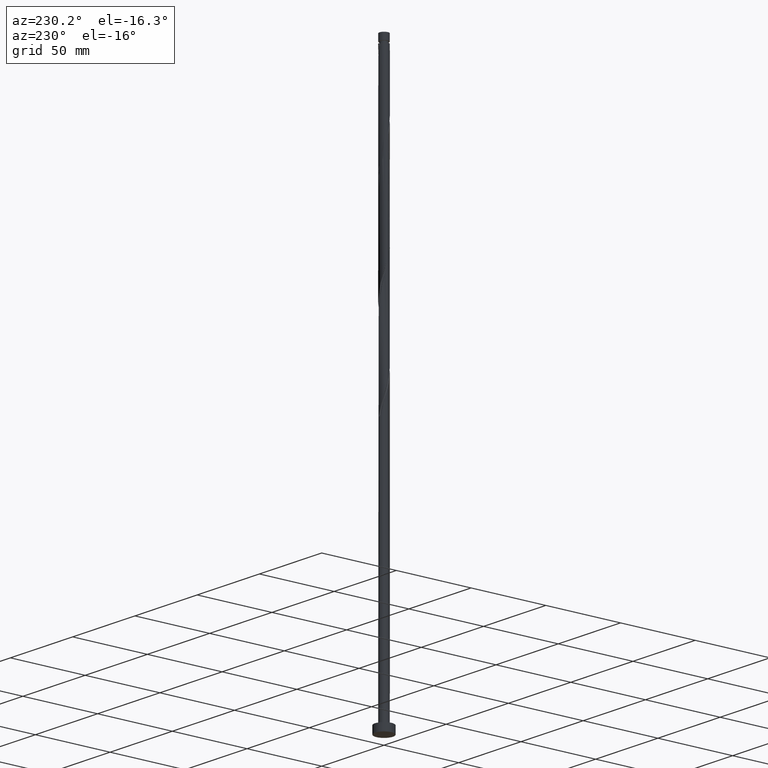
[diagram: clean part render]
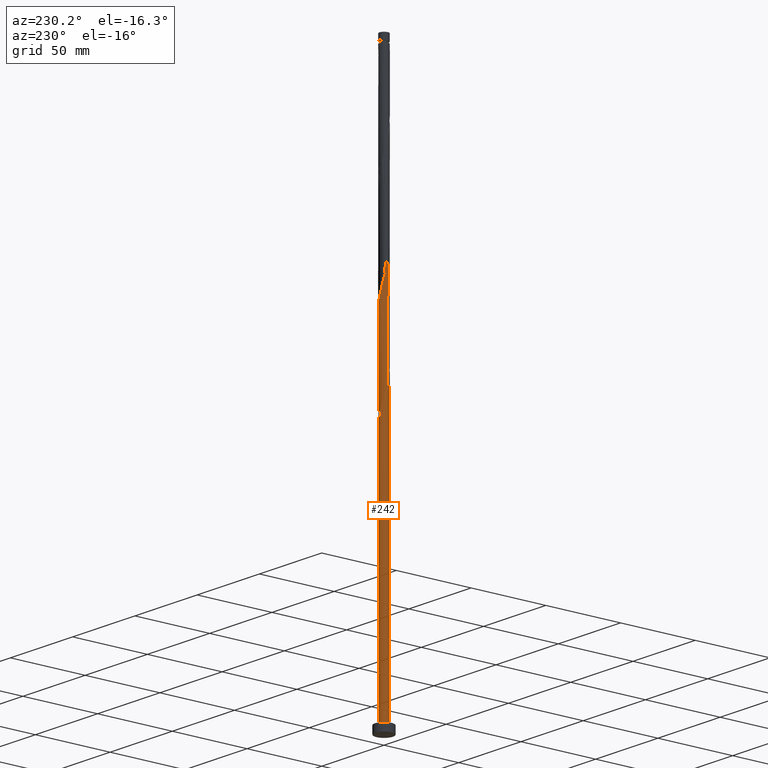
[diagram: same view with one face highlighted and labeled with its STEP entity id]
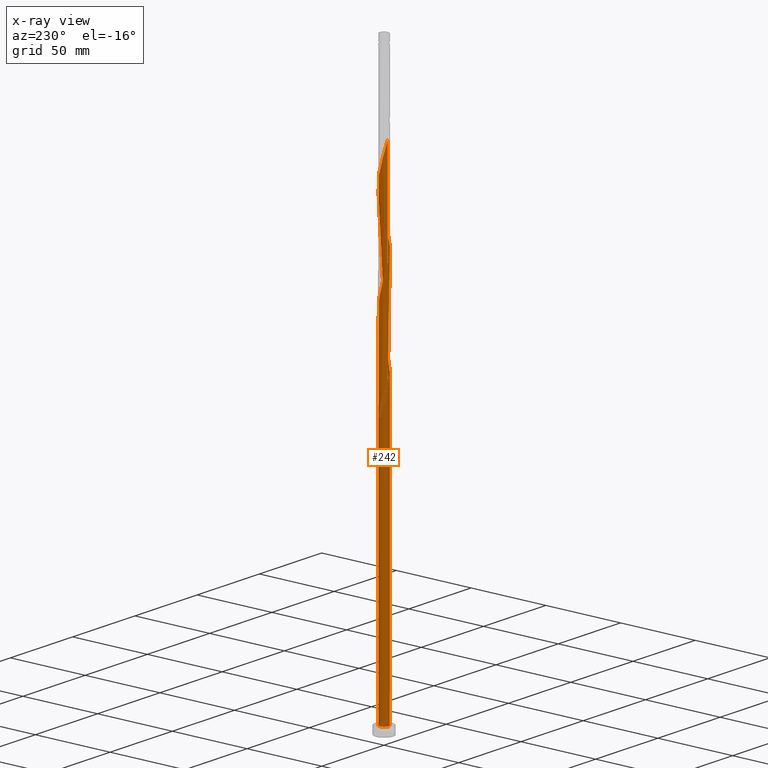
[diagram: x-ray of the same camera — body ghosted, the highlighted face saturated]
A machine part, auxiliary view. The second image highlights one B-rep face of the part: STEP entity #242.
The next image is the same camera in x-ray: the body ghosted, the highlighted face saturated — about 0% of this face is hidden behind the body in this view.
In plain terms, the highlighted cylindrical surface (bore or boss wall) has radius 3 mm, axis along (-0, -0, -1).
Its self-contained STEP definition (entity closure, byte-faithful):
#4 = CARTESIAN_POINT ( 'NONE',  ( 0.9059989139450633777, -2.877253563794377023, 271.1348695446484953 ) ) ;
#16 = CARTESIAN_POINT ( 'NONE',  ( 1.785379858637182515, 2.410895841875527079, 227.8015362113152378 ) ) ;
#27 = CARTESIAN_POINT ( 'NONE',  ( -2.038775222402707588, -2.223244857174723421, 260.0237584335374095 ) ) ;
#38 = CARTESIAN_POINT ( 'NONE',  ( 2.038775222402708476, 2.223244857174723421, 293.3570917668706670 ) ) ;
#50 = AXIS2_PLACEMENT_3D ( 'NONE', #176, #933, #205 ) ;
#54 = CARTESIAN_POINT ( 'NONE',  ( -1.997955648279250651, 2.259998966802001075, 308.9126473224263236 ) ) ;
#76 = CARTESIAN_POINT ( 'NONE',  ( -2.944774136347771520, 0.6540087066196512700, 315.5793139890930092 ) ) ;
#85 = VECTOR ( 'NONE', #1208, 1000.000000000000000 ) ;
#91 = CARTESIAN_POINT ( 'NONE',  ( 1.195207115623887262, -2.751632233922633120, 205.5793139890930092 ) ) ;
#98 = CARTESIAN_POINT ( 'NONE',  ( -2.844610918258241306, 0.9529893618115773402, 181.1348695446485237 ) ) ;
#100 = EDGE_CURVE ( 'NONE', #708, #1715, #1727, .T. ) ;
#106 = CARTESIAN_POINT ( 'NONE',  ( -0.3426132633519642923, -2.997004880578674424, 200.0237584335374095 ) ) ;
#111 = VERTEX_POINT ( 'NONE', #527 ) ;
#115 = CARTESIAN_POINT ( 'NONE',  ( -2.980586974261068889, 0.3407363920471048191, 183.3570917668707807 ) ) ;
#116 = CIRCLE ( 'NONE', #424, 3.000000000000000444 ) ;
#117 = CARTESIAN_POINT ( 'NONE',  ( -1.531984494871650559, 2.598546826576326296, 177.8015362113152094 ) ) ;
#127 = VERTEX_POINT ( 'NONE', #343 ) ;
#133 = CARTESIAN_POINT ( 'NONE',  ( 1.484415317302710369, -2.626010904050888772, 273.3570917668707807 ) ) ;
#142 = CARTESIAN_POINT ( 'NONE',  ( 2.944774136347771076, -0.6540087066196530463, 282.2459806557595812 ) ) ;
#149 = CARTESIAN_POINT ( 'NONE',  ( -1.785379858637182515, -2.410895841875527079, 261.1348695446486090 ) ) ;
#155 = CARTESIAN_POINT ( 'NONE',  ( -2.424175730171096887, 1.795214230025626412, 244.4682028779818381 ) ) ;
#156 = CARTESIAN_POINT ( 'NONE',  ( 0.5969924622639752876, 2.939999999999999059, 170.0237584335374095 ) ) ;
#163 = CARTESIAN_POINT ( 'NONE',  ( -2.861491667719902932, -0.9010357570982425734, 254.4682028779819518 ) ) ;
#176 = CARTESIAN_POINT ( 'NONE',  ( 0.000000000000000000, 0.000000000000000000, 170.0237584335374095 ) ) ;
#177 = CARTESIAN_POINT ( 'NONE',  ( 0.2879860105828859207, 3.002746436205627756, 171.1348695446484953 ) ) ;
#197 = DIRECTION ( 'NONE',  ( -0.000000000000000000, -0.000000000000000000, -1.000000000000000000 ) ) ;
#199 = CIRCLE ( 'NONE', #50, 3.000000000000000444 ) ;
#205 = DIRECTION ( 'NONE',  ( -1.000000000000000000, 0.000000000000000000, 0.000000000000000000 ) ) ;
#242 = ADVANCED_FACE ( 'NONE', ( #1371 ), #1359, .T. ) ;
#245 = CARTESIAN_POINT ( 'NONE',  ( -2.611625341554443480, -1.476283534877589121, 190.0237584335374379 ) ) ;
#260 = CARTESIAN_POINT ( 'NONE',  ( 3.016399812174364481, -0.02746407747455986703, 217.8015362113151809 ) ) ;
#261 = ORIENTED_EDGE ( 'NONE', *, *, #1285, .T. ) ;
#268 = CARTESIAN_POINT ( 'NONE',  ( -2.944774136347771520, 0.6540087066196512700, 182.2459806557596949 ) ) ;
#279 = CARTESIAN_POINT ( 'NONE',  ( 0.2879860105828850325, -3.002746436205632641, 202.2459806557596664 ) ) ;
#289 = CARTESIAN_POINT ( 'NONE',  ( -2.211065689225174324, 2.027606598413813632, 243.3570917668708091 ) ) ;
#297 = CARTESIAN_POINT ( 'NONE',  ( 0.3426132633519647919, 2.997004880578674424, 233.3570917668707523 ) ) ;
#309 = CARTESIAN_POINT ( 'NONE',  ( 0.9582386936374935882, 2.860279830445437543, 231.1348695446485237 ) ) ;
#318 = CARTESIAN_POINT ( 'NONE',  ( -2.584311715169902879, 1.523592123514564634, 245.5793139890930092 ) ) ;
#327 = CARTESIAN_POINT ( 'NONE',  ( -0.02731362638454028560, -2.999875658392153532, 267.8015362113151809 ) ) ;
#343 = CARTESIAN_POINT ( 'NONE',  ( -3.000000000000006217, -3.393290300490922645E-15, 184.5649818566826070 ) ) ;
#351 = DIRECTION ( 'NONE',  ( -1.000000000000000000, 0.000000000000000000, 0.000000000000000000 ) ) ;
#356 = CARTESIAN_POINT ( 'NONE',  ( -2.211065689225174324, 2.027606598413813632, 310.0237584335375800 ) ) ;
#367 = CARTESIAN_POINT ( 'NONE',  ( 1.785379858637182515, 2.410895841875527079, 294.4682028779818665 ) ) ;
#388 = CARTESIAN_POINT ( 'NONE',  ( -2.424175730171096887, 1.795214230025626412, 177.8015362113152094 ) ) ;
#399 = CARTESIAN_POINT ( 'NONE',  ( -2.247618455994266462, -1.987010638188427381, 192.2459806557597233 ) ) ;
#403 = CARTESIAN_POINT ( 'NONE',  ( 0.000000000000000000, 0.000000000000000000, 5.000000000000000000 ) ) ;
#407 = CARTESIAN_POINT ( 'NONE',  ( 2.980586974261068889, -0.3407363920471051522, 216.6904251002040951 ) ) ;
#408 = CARTESIAN_POINT ( 'NONE',  ( -1.785379858637177630, 2.410895841875524859, 178.9126473224263236 ) ) ;
#414 = CARTESIAN_POINT ( 'NONE',  ( -1.785379858637182515, -2.410895841875527079, 194.4682028779819234 ) ) ;
#424 = AXIS2_PLACEMENT_3D ( 'NONE', #403, #1126, #1091 ) ;
#435 = CARTESIAN_POINT ( 'NONE',  ( 1.531984494871656111, 2.598546826576328517, 228.9126473224262952 ) ) ;
#444 = CARTESIAN_POINT ( 'NONE',  ( 2.247618455994267350, 1.987010638188426048, 225.5793139890930661 ) ) ;
#452 = CARTESIAN_POINT ( 'NONE',  ( 2.956194341916741575, 0.6002808636434363576, 286.6904251002040382 ) ) ;
#462 = CARTESIAN_POINT ( 'NONE',  ( 1.741185482790979844, -2.443004935426445812, 274.4682028779819234 ) ) ;
#471 = CARTESIAN_POINT ( 'NONE',  ( -1.531984494871654334, -2.598546826576328961, 262.2459806557595812 ) ) ;
#505 = CARTESIAN_POINT ( 'NONE',  ( -2.844610918258241306, 0.9529893618115773402, 314.4682028779819234 ) ) ;
#515 = LINE ( 'NONE', #1657, #638 ) ;
#523 = CARTESIAN_POINT ( 'NONE',  ( 0.9582386936374935882, 2.860279830445437543, 297.8015362113152378 ) ) ;
#527 = CARTESIAN_POINT ( 'NONE',  ( -0.5969924622639743994, 2.940000000000004388, 170.0237584335374095 ) ) ;
#543 = CARTESIAN_POINT ( 'NONE',  ( 0.5969924622639748435, -2.940000000000004388, 203.3570917668708091 ) ) ;
#545 = VERTEX_POINT ( 'NONE', #719 ) ;
#549 = CARTESIAN_POINT ( 'NONE',  ( 2.744447700168709758, -1.251970017003503299, 213.3570917668706954 ) ) ;
#550 = CARTESIAN_POINT ( 'NONE',  ( -2.038775222402704035, 2.223244857174722089, 180.0237584335374379 ) ) ;
#557 = ORIENTED_EDGE ( 'NONE', *, *, #1345, .F. ) ;
#558 = EDGE_CURVE ( 'NONE', #545, #1872, #1809, .T. ) ;
#560 = CARTESIAN_POINT ( 'NONE',  ( -2.611625341554438595, 1.476283534877587345, 183.3570917668707523 ) ) ;
#567 = CARTESIAN_POINT ( 'NONE',  ( -3.000000000000003997, -0.1435319978602615509, 185.0735303822467301 ) ) ;
#577 = CARTESIAN_POINT ( 'NONE',  ( 0.2879860105828850325, -3.002746436205632641, 268.9126473224262668 ) ) ;
#589 = CARTESIAN_POINT ( 'NONE',  ( -2.986297077045554360, -0.2864083930844386616, 252.2459806557597233 ) ) ;
#597 = CARTESIAN_POINT ( 'NONE',  ( 3.016399812174364481, -0.02746407747455986703, 284.4682028779819234 ) ) ;
#607 = CARTESIAN_POINT ( 'NONE',  ( -2.744447700168709758, 1.251970017003503299, 246.6904251002040667 ) ) ;
#614 = CARTESIAN_POINT ( 'NONE',  ( -1.997955648279250651, 2.259998966802001075, 242.2459806557596380 ) ) ;
#638 = VECTOR ( 'NONE', #1792, 1000.000000000000000 ) ;
#646 = CARTESIAN_POINT ( 'NONE',  ( -1.741185482790980954, 2.443004935426445368, 307.8015362113151809 ) ) ;
#680 = CARTESIAN_POINT ( 'NONE',  ( -2.861491667719902932, -0.9010357570982425734, 187.8015362113152378 ) ) ;
#687 = CARTESIAN_POINT ( 'NONE',  ( -1.245111594254573628, -2.729413328510884806, 196.6904251002040951 ) ) ;
#688 = AXIS2_PLACEMENT_3D ( 'NONE', #1661, #197, #351 ) ;
#695 = CARTESIAN_POINT ( 'NONE',  ( -1.997955648279250651, 2.259998966802001075, 175.5793139890929808 ) ) ;
#696 = CARTESIAN_POINT ( 'NONE',  ( -2.766788993523056295, 1.201790650553046902, 184.4682028779818097 ) ) ;
#704 = CARTESIAN_POINT ( 'NONE',  ( 1.484415317302710369, -2.626010904050888772, 206.6904251002040667 ) ) ;
#705 = CARTESIAN_POINT ( 'NONE',  ( -1.245111594254570742, 2.729413328510880365, 176.6904251002040951 ) ) ;
#708 = VERTEX_POINT ( 'NONE', #1507 ) ;
#717 = CARTESIAN_POINT ( 'NONE',  ( 1.997955648279249763, -2.259998966802001963, 275.5793139890928956 ) ) ;
#719 = CARTESIAN_POINT ( 'NONE',  ( -3.000000000000000000, -3.632464947221585111E-15, 188.8158683437255831 ) ) ;
#727 = CARTESIAN_POINT ( 'NONE',  ( 2.986297077045554360, 0.2864083930844369963, 285.5793139890930092 ) ) ;
#739 = CARTESIAN_POINT ( 'NONE',  ( -0.6504259784947288292, -2.928642355512056650, 265.5793139890930092 ) ) ;
#748 = CARTESIAN_POINT ( 'NONE',  ( -2.611625341554443480, -1.476283534877589121, 256.6904251002040951 ) ) ;
#749 = CARTESIAN_POINT ( 'NONE',  ( -0.3426132633519629600, 2.997004880578668207, 173.3570917668707807 ) ) ;
#758 = CARTESIAN_POINT ( 'NONE',  ( 2.456461689585824448, 1.750776419202128675, 224.4682028779819234 ) ) ;
#769 = LINE ( 'NONE', #1681, #85 ) ;
#779 = CARTESIAN_POINT ( 'NONE',  ( 1.531984494871656111, 2.598546826576328517, 295.5793139890929524 ) ) ;
#789 = CARTESIAN_POINT ( 'NONE',  ( -2.424175730171096887, 1.795214230025626412, 311.1348695446483816 ) ) ;
#801 = CARTESIAN_POINT ( 'NONE',  ( 0.02731362638454071234, 2.999875658392153532, 301.1348695446485522 ) ) ;
#811 = CARTESIAN_POINT ( 'NONE',  ( 0.6504259784947304945, 2.928642355512055762, 298.9126473224263236 ) ) ;
#833 = CARTESIAN_POINT ( 'NONE',  ( -2.456461689585824448, -1.750776419202129119, 191.1348695446485522 ) ) ;
#834 =( BOUNDED_CURVE ( )  B_SPLINE_CURVE ( 2, ( #1728, #567, #965, #1557, #680, #1116, #245, #833, #399, #1736, #414, #998, #687, #847, #1591, #106, #854, #279, #543, #840, #91, #704, #863, #1858, #990, #1261, #1424, #549, #1124, #1721, #407, #260, #1431, #1630, #1187, #1610, #1747, #758, #444, #871, #16, #435, #881, #309, #1036, #297, #1307, #1296, #1007, #896, #1335, #1764, #1602, #614, #289, #155, #318, #607, #1782, #1893, #889, #1773, #589, #1325, #163, #1179, #748, #1484, #1017, #27, #149, #471, #1048, #1465, #739, #1641, #327, #577, #1758, #4, #1450, #133, #462, #717, #1458, #1475, #1884, #1316, #1148, #142, #1159, #597, #727, #452, #1168, #1026, #1622, #1824, #1235, #38, #367, #779, #1356, #523, #811, #1226, #801, #906, #1065, #942, #1366, #1391, #646, #54, #356, #789, #1689, #1216, #505, #76, #1527, #1056, #1813 ),
 .UNSPECIFIED., .F., .T. ) 
 B_SPLINE_CURVE_WITH_KNOTS ( ( 3, 2, 2, 2, 2, 2, 2, 2, 2, 2, 2, 2, 2, 2, 2, 2, 2, 2, 2, 2, 2, 2, 2, 2, 2, 2, 2, 2, 2, 2, 2, 2, 2, 2, 2, 2, 2, 2, 2, 2, 2, 2, 2, 2, 2, 2, 2, 2, 2, 2, 2, 2, 2, 2, 2, 2, 2, 2, 2, 2, 2, 3 ),
 ( 0.05452860127731180839, 0.05833333333333334814, 0.06666666666666665186, 0.07499999999999995559, 0.08333333333333337034, 0.09166666666666667407, 0.09999999999999997780, 0.1083333333333332815, 0.1166666666666666963, 0.1250000000000000000, 0.1333333333333333037, 0.1416666666666667185, 0.1500000000000000222, 0.1583333333333333259, 0.1666666666666666297, 0.1750000000000000444, 0.1833333333333333481, 0.1916666666666666519, 0.1999999999999999556, 0.2083333333333333703, 0.2166666666666666741, 0.2249999999999999778, 0.2333333333333332815, 0.2416666666666666963, 0.2500000000000000000, 0.2583333333333333037, 0.2666666666666667185, 0.2750000000000000222, 0.2833333333333333259, 0.2916666666666666297, 0.3000000000000000444, 0.3083333333333333481, 0.3166666666666666519, 0.3249999999999999556, 0.3333333333333333703, 0.3416666666666666741, 0.3499999999999999778, 0.3583333333333332815, 0.3666666666666666963, 0.3750000000000000000, 0.3833333333333333037, 0.3916666666666667185, 0.4000000000000000222, 0.4083333333333333259, 0.4166666666666666297, 0.4250000000000000444, 0.4333333333333333481, 0.4416666666666666519, 0.4499999999999999556, 0.4583333333333333703, 0.4666666666666666741, 0.4749999999999999778, 0.4833333333333332815, 0.4916666666666666963, 0.5000000000000000000, 0.5083333333333333037, 0.5166666666666666075, 0.5250000000000000222, 0.5333333333333333259, 0.5416666666666667407, 0.5500000000000000444, 0.5545286012773114059 ),
 .UNSPECIFIED. ) 
 CURVE ( )  GEOMETRIC_REPRESENTATION_ITEM ( )  RATIONAL_B_SPLINE_CURVE ( ( 0.9066196499552482413, 0.9068171577856611876, 0.9090909090909599088, 0.9041108139712081826, 0.9090909090909599088, 0.9041108139712081826, 0.9090909090909599088, 0.9041108139712081826, 0.9090909090909599088, 0.9041108139712081826, 0.9090909090909599088, 0.9041108139712081826, 0.9090909090909599088, 0.9041108139712081826, 0.9090909090909599088, 0.9041108139712081826, 0.9090909090909599088, 0.9041108139712081826, 0.9090909090909599088, 0.9041108139712081826, 0.9090909090909599088, 0.9041108139712081826, 0.9090909090909599088, 0.9041108139712081826, 0.9090909090909599088, 0.9041108139712081826, 0.9090909090909599088, 0.9041108139712081826, 0.9090909090909599088, 0.9041108139712081826, 0.9090909090909599088, 0.9041108139712081826, 0.9090909090909599088, 0.9041108139712081826, 0.9090909090909599088, 0.9041108139712081826, 0.9090909090909599088, 0.9041108139712081826, 0.9090909090909599088, 0.9041108139712081826, 0.9090909090909599088, 0.9041108139712081826, 0.9090909090909599088, 0.9041108139712081826, 0.9090909090909599088, 0.9041108139712081826, 0.9090909090909599088, 0.9041108139712081826, 0.9090909090909599088, 0.9041108139712081826, 0.9090909090909599088, 0.9041108139712081826, 0.9090909090909599088, 0.9041108139712081826, 0.9090909090909599088, 0.9041108139712081826, 0.9090909090909599088, 0.9041108139712081826, 0.9090909090909599088, 0.9041108139712081826, 0.9090909090909599088, 0.9041108139712081826, 0.9090909090909599088, 0.9041108139712081826, 0.9090909090909599088, 0.9041108139712081826, 0.9090909090909599088, 0.9041108139712081826, 0.9090909090909599088, 0.9041108139712081826, 0.9090909090909599088, 0.9041108139712081826, 0.9090909090909599088, 0.9041108139712081826, 0.9090909090909599088, 0.9041108139712081826, 0.9090909090909599088, 0.9041108139712081826, 0.9090909090909599088, 0.9041108139712081826, 0.9090909090909599088, 0.9041108139712081826, 0.9090909090909599088, 0.9041108139712081826, 0.9090909090909599088, 0.9041108139712081826, 0.9090909090909599088, 0.9041108139712081826, 0.9090909090909599088, 0.9041108139712081826, 0.9090909090909599088, 0.9041108139712081826, 0.9090909090909599088, 0.9041108139712081826, 0.9090909090909599088, 0.9041108139712081826, 0.9090909090909599088, 0.9041108139712081826, 0.9090909090909599088, 0.9041108139712081826, 0.9090909090909599088, 0.9041108139712081826, 0.9090909090909599088, 0.9041108139712081826, 0.9090909090909599088, 0.9041108139712081826, 0.9090909090909599088, 0.9041108139712081826, 0.9090909090909599088, 0.9041108139712081826, 0.9090909090909599088, 0.9041108139712081826, 0.9090909090909599088, 0.9041108139712081826, 0.9090909090909599088, 0.9041108139712081826, 0.9090909090909599088, 0.9041108139712081826, 0.9090909090909599088, 0.9041108139712081826, 0.9090909090909599088, 0.9063845652765071259, 0.9066196499552482413 ) ) 
 REPRESENTATION_ITEM ( '' )  );
#840 = CARTESIAN_POINT ( 'NONE',  ( 0.9059989139450633777, -2.877253563794377023, 204.4682028779818381 ) ) ;
#841 = CARTESIAN_POINT ( 'NONE',  ( -2.956194341916736246, 0.6002808636434366907, 186.6904251002040667 ) ) ;
#847 = CARTESIAN_POINT ( 'NONE',  ( -0.9582386936374930331, -2.860279830445437987, 197.8015362113151241 ) ) ;
#854 = CARTESIAN_POINT ( 'NONE',  ( -0.02731362638454028560, -2.999875658392153532, 201.1348695446485522 ) ) ;
#855 = ORIENTED_EDGE ( 'NONE', *, *, #1285, .F. ) ;
#857 = ORIENTED_EDGE ( 'NONE', *, *, #100, .T. ) ;
#863 = CARTESIAN_POINT ( 'NONE',  ( 1.741185482790979844, -2.443004935426445812, 207.8015362113152094 ) ) ;
#871 = CARTESIAN_POINT ( 'NONE',  ( 2.038775222402708476, 2.223244857174723421, 226.6904251002040951 ) ) ;
#881 = CARTESIAN_POINT ( 'NONE',  ( 1.245111594254574072, 2.729413328510884806, 230.0237584335374379 ) ) ;
#889 = CARTESIAN_POINT ( 'NONE',  ( -2.980586974261068889, 0.3407363920471048191, 250.0237584335374095 ) ) ;
#896 = CARTESIAN_POINT ( 'NONE',  ( -0.9059989139450645990, 2.877253563794375246, 237.8015362113151809 ) ) ;
#906 = CARTESIAN_POINT ( 'NONE',  ( -0.2879860105828832562, 3.002746436205633085, 302.2459806557596949 ) ) ;
#933 = DIRECTION ( 'NONE',  ( 0.000000000000000000, -0.000000000000000000, -1.000000000000000000 ) ) ;
#942 = CARTESIAN_POINT ( 'NONE',  ( -0.9059989139450645990, 2.877253563794375246, 304.4682028779818097 ) ) ;
#958 = ORIENTED_EDGE ( 'NONE', *, *, #1251, .T. ) ;
#965 = CARTESIAN_POINT ( 'NONE',  ( -2.986297077045554360, -0.2864083930844386616, 185.5793139890930092 ) ) ;
#966 = CARTESIAN_POINT ( 'NONE',  ( -2.986297077045549919, 0.2864083930844398274, 187.8015362113152094 ) ) ;
#975 = CARTESIAN_POINT ( 'NONE',  ( -3.000000000000005773, -1.136079571970528976E-15, 317.8983151900158646 ) ) ;
#983 = CARTESIAN_POINT ( 'NONE',  ( -2.744447700168709758, 1.251970017003503299, 180.0237584335373811 ) ) ;
#984 = VERTEX_POINT ( 'NONE', #975 ) ;
#990 = CARTESIAN_POINT ( 'NONE',  ( 2.211065689225174324, -2.027606598413813632, 210.0237584335374947 ) ) ;
#998 = CARTESIAN_POINT ( 'NONE',  ( -1.531984494871654334, -2.598546826576328961, 195.5793139890929808 ) ) ;
#1007 = CARTESIAN_POINT ( 'NONE',  ( -0.5969924622639746215, 2.940000000000004388, 236.6904251002040951 ) ) ;
#1017 = CARTESIAN_POINT ( 'NONE',  ( -2.247618455994266462, -1.987010638188427381, 258.9126473224263236 ) ) ;
#1026 = CARTESIAN_POINT ( 'NONE',  ( 2.766788993523062068, 1.201790650553046014, 288.9126473224263236 ) ) ;
#1027 = EDGE_CURVE ( 'NONE', #111, #127, #1734, .T. ) ;
#1036 = CARTESIAN_POINT ( 'NONE',  ( 0.6504259784947304945, 2.928642355512055762, 232.2459806557597233 ) ) ;
#1044 = AXIS2_PLACEMENT_3D ( 'NONE', #1652, #1684, #1240 ) ;
#1048 = CARTESIAN_POINT ( 'NONE',  ( -1.245111594254573628, -2.729413328510884806, 263.3570917668708375 ) ) ;
#1056 = CARTESIAN_POINT ( 'NONE',  ( -3.000000000000004885, 0.1709212123393004101, 317.2927238806314563 ) ) ;
#1065 = CARTESIAN_POINT ( 'NONE',  ( -0.5969924622639746215, 2.940000000000004388, 303.3570917668708944 ) ) ;
#1084 = EDGE_CURVE ( 'NONE', #127, #984, #834, .T. ) ;
#1091 = DIRECTION ( 'NONE',  ( 1.000000000000000000, 0.000000000000000000, 0.000000000000000000 ) ) ;
#1106 = CARTESIAN_POINT ( 'NONE',  ( -1.195207115623888150, 2.751632233922633120, 172.2459806557596949 ) ) ;
#1116 = CARTESIAN_POINT ( 'NONE',  ( -2.766788993523061624, -1.201790650553047790, 188.9126473224262952 ) ) ;
#1124 = CARTESIAN_POINT ( 'NONE',  ( 2.844610918258241306, -0.9529893618115785614, 214.4682028779818950 ) ) ;
#1126 = DIRECTION ( 'NONE',  ( 0.000000000000000000, 0.000000000000000000, 1.000000000000000000 ) ) ;
#1136 = CARTESIAN_POINT ( 'NONE',  ( -1.741185482790980954, 2.443004935426445368, 174.4682028779818950 ) ) ;
#1148 = CARTESIAN_POINT ( 'NONE',  ( 2.844610918258241306, -0.9529893618115785614, 281.1348695446486090 ) ) ;
#1149 = CARTESIAN_POINT ( 'NONE',  ( -0.02731362638453839475, 2.999875658392148647, 172.2459806557596949 ) ) ;
#1159 = CARTESIAN_POINT ( 'NONE',  ( 2.980586974261068889, -0.3407363920471051522, 283.3570917668707807 ) ) ;
#1168 = CARTESIAN_POINT ( 'NONE',  ( 2.861491667719902932, 0.9010357570982414632, 287.8015362113153515 ) ) ;
#1179 = CARTESIAN_POINT ( 'NONE',  ( -2.766788993523061624, -1.201790650553047790, 255.5793139890929524 ) ) ;
#1187 = CARTESIAN_POINT ( 'NONE',  ( 2.861491667719902932, 0.9010357570982414632, 221.1348695446485522 ) ) ;
#1208 = DIRECTION ( 'NONE',  ( -0.000000000000000000, -0.000000000000000000, -1.000000000000000000 ) ) ;
#1216 = CARTESIAN_POINT ( 'NONE',  ( -2.744447700168709758, 1.251970017003503299, 313.3570917668707807 ) ) ;
#1226 = CARTESIAN_POINT ( 'NONE',  ( 0.3426132633519647919, 2.997004880578674424, 300.0237584335374095 ) ) ;
#1235 = CARTESIAN_POINT ( 'NONE',  ( 2.247618455994267350, 1.987010638188426048, 292.2459806557596949 ) ) ;
#1240 = DIRECTION ( 'NONE',  ( 1.000000000000000000, 0.000000000000000000, 0.000000000000000000 ) ) ;
#1251 = EDGE_CURVE ( 'NONE', #111, #1872, #199, .T. ) ;
#1261 = CARTESIAN_POINT ( 'NONE',  ( 2.424175730171096443, -1.795214230025626856, 211.1348695446484953 ) ) ;
#1270 = CARTESIAN_POINT ( 'NONE',  ( -2.456461689585819563, 1.750776419202127565, 182.2459806557596096 ) ) ;
#1280 = ORIENTED_EDGE ( 'NONE', *, *, #1796, .T. ) ;
#1285 = EDGE_CURVE ( 'NONE', #127, #1715, #769, .T. ) ;
#1296 = CARTESIAN_POINT ( 'NONE',  ( -0.2879860105828832562, 3.002746436205633085, 235.5793139890929808 ) ) ;
#1307 = CARTESIAN_POINT ( 'NONE',  ( 0.02731362638454071234, 2.999875658392153532, 234.4682028779819234 ) ) ;
#1316 = CARTESIAN_POINT ( 'NONE',  ( 2.744447700168709758, -1.251970017003503299, 280.0237584335375232 ) ) ;
#1325 = CARTESIAN_POINT ( 'NONE',  ( -2.956194341916741575, -0.6002808636434368017, 253.3570917668707239 ) ) ;
#1326 = CARTESIAN_POINT ( 'NONE',  ( -0.9582386936374899244, 2.860279830445433547, 175.5793139890929240 ) ) ;
#1335 = CARTESIAN_POINT ( 'NONE',  ( -1.195207115623888150, 2.751632233922633120, 238.9126473224263520 ) ) ;
#1345 = EDGE_CURVE ( 'NONE', #984, #545, #515, .T. ) ;
#1356 = CARTESIAN_POINT ( 'NONE',  ( 1.245111594254574072, 2.729413328510884806, 296.6904251002040951 ) ) ;
#1359 = CYLINDRICAL_SURFACE ( 'NONE', #688, 3.000000000000000444 ) ;
#1366 = CARTESIAN_POINT ( 'NONE',  ( -1.195207115623888150, 2.751632233922633120, 305.5793139890930661 ) ) ;
#1371 = FACE_OUTER_BOUND ( 'NONE', #1804, .T. ) ;
#1391 = CARTESIAN_POINT ( 'NONE',  ( -1.484415317302710813, 2.626010904050888328, 306.6904251002039814 ) ) ;
#1417 = CARTESIAN_POINT ( 'NONE',  ( -3.000000000000007105, 0.1709212123392852556, 183.9593905472980566 ) ) ;
#1424 = CARTESIAN_POINT ( 'NONE',  ( 2.584311715169902879, -1.523592123514565300, 212.2459806557597517 ) ) ;
#1425 = CARTESIAN_POINT ( 'NONE',  ( -2.861491667719897602, 0.9010357570982424624, 185.5793139890930092 ) ) ;
#1431 = CARTESIAN_POINT ( 'NONE',  ( 2.986297077045554360, 0.2864083930844369963, 218.9126473224263805 ) ) ;
#1450 = CARTESIAN_POINT ( 'NONE',  ( 1.195207115623887262, -2.751632233922633120, 272.2459806557596949 ) ) ;
#1458 = CARTESIAN_POINT ( 'NONE',  ( 2.211065689225174324, -2.027606598413813632, 276.6904251002040951 ) ) ;
#1465 = CARTESIAN_POINT ( 'NONE',  ( -0.9582386936374930331, -2.860279830445437987, 264.4682028779818665 ) ) ;
#1475 = CARTESIAN_POINT ( 'NONE',  ( 2.424175730171096443, -1.795214230025626856, 277.8015362113151241 ) ) ;
#1484 = CARTESIAN_POINT ( 'NONE',  ( -2.456461689585824448, -1.750776419202129119, 257.8015362113151241 ) ) ;
#1507 = CARTESIAN_POINT ( 'NONE',  ( 3.000000000000000444, 0.000000000000000000, 5.000000000000000000 ) ) ;
#1527 = CARTESIAN_POINT ( 'NONE',  ( -2.980586974261068889, 0.3407363920471048191, 316.6904251002040951 ) ) ;
#1541 = CARTESIAN_POINT ( 'NONE',  ( 0.5969924622639752876, 2.939999999999999059, 170.0237584335374095 ) ) ;
#1557 = CARTESIAN_POINT ( 'NONE',  ( -2.956194341916741575, -0.6002808636434368017, 186.6904251002040951 ) ) ;
#1566 = CARTESIAN_POINT ( 'NONE',  ( -3.000000000000006217, -3.393290300490922251E-15, 184.5649818566826070 ) ) ;
#1567 = CARTESIAN_POINT ( 'NONE',  ( -3.000000000000000444, -3.632464947221585111E-15, 188.8158683437255831 ) ) ;
#1570 = ORIENTED_EDGE ( 'NONE', *, *, #558, .F. ) ;
#1591 = CARTESIAN_POINT ( 'NONE',  ( -0.6504259784947288292, -2.928642355512056650, 198.9126473224263236 ) ) ;
#1602 = CARTESIAN_POINT ( 'NONE',  ( -1.741185482790980954, 2.443004935426445368, 241.1348695446485522 ) ) ;
#1610 = CARTESIAN_POINT ( 'NONE',  ( 2.766788993523062068, 1.201790650553046014, 222.2459806557596096 ) ) ;
#1622 = CARTESIAN_POINT ( 'NONE',  ( 2.611625341554443480, 1.476283534877589121, 290.0237584335375800 ) ) ;
#1630 = CARTESIAN_POINT ( 'NONE',  ( 2.956194341916741575, 0.6002808636434363576, 220.0237584335374095 ) ) ;
#1641 = CARTESIAN_POINT ( 'NONE',  ( -0.3426132633519642923, -2.997004880578674424, 266.6904251002041519 ) ) ;
#1652 = CARTESIAN_POINT ( 'NONE',  ( 0.000000000000000000, 0.000000000000000000, 5.000000000000000000 ) ) ;
#1657 = CARTESIAN_POINT ( 'NONE',  ( -3.000000000000000444, 0.000000000000000000, 375.6999999999999886 ) ) ;
#1661 = CARTESIAN_POINT ( 'NONE',  ( 0.000000000000000000, 0.000000000000000000, 375.6999999999999886 ) ) ;
#1681 = CARTESIAN_POINT ( 'NONE',  ( -3.000000000000000444, 0.000000000000000000, 375.6999999999999886 ) ) ;
#1684 = DIRECTION ( 'NONE',  ( 0.000000000000000000, 0.000000000000000000, 1.000000000000000000 ) ) ;
#1689 = CARTESIAN_POINT ( 'NONE',  ( -2.584311715169902879, 1.523592123514564634, 312.2459806557596949 ) ) ;
#1702 = CARTESIAN_POINT ( 'NONE',  ( -2.584311715169902879, 1.523592123514564634, 178.9126473224263520 ) ) ;
#1703 = CARTESIAN_POINT ( 'NONE',  ( -3.000000000000000000, 0.1435319978602476454, 188.3073198181614885 ) ) ;
#1711 = CARTESIAN_POINT ( 'NONE',  ( -2.211065689225174324, 2.027606598413813632, 176.6904251002040667 ) ) ;
#1715 = VERTEX_POINT ( 'NONE', #1882 ) ;
#1721 = CARTESIAN_POINT ( 'NONE',  ( 2.944774136347771076, -0.6540087066196530463, 215.5793139890928956 ) ) ;
#1727 = CIRCLE ( 'NONE', #1044, 3.000000000000000444 ) ;
#1728 = CARTESIAN_POINT ( 'NONE',  ( -3.000000000000006217, -3.393290300490922251E-15, 184.5649818566826070 ) ) ;
#1734 =( BOUNDED_CURVE ( )  B_SPLINE_CURVE ( 2, ( #1870, #1844, #1106, #1877, #1136, #695, #1711, #388, #1702, #983, #98, #268, #115, #1417, #1566 ),
 .UNSPECIFIED., .F., .T. ) 
 B_SPLINE_CURVE_WITH_KNOTS ( ( 3, 2, 2, 2, 2, 2, 2, 3 ),
 ( 0.000000000000000000, 0.008333333333333303727, 0.01666666666666671848, 0.02500000000000002220, 0.03333333333333332593, 0.04166666666666662966, 0.05000000000000004441, 0.05452860127731180839 ),
 .UNSPECIFIED. ) 
 CURVE ( )  GEOMETRIC_REPRESENTATION_ITEM ( )  RATIONAL_B_SPLINE_CURVE ( ( 0.9090909090909599088, 0.9041108139712081826, 0.9090909090909599088, 0.9041108139712081826, 0.9090909090909599088, 0.9041108139712081826, 0.9090909090909599088, 0.9041108139712081826, 0.9090909090909599088, 0.9041108139712081826, 0.9090909090909599088, 0.9041108139712081826, 0.9090909090909599088, 0.9063845652765067928, 0.9066196499552482413 ) ) 
 REPRESENTATION_ITEM ( '' )  );
#1736 = CARTESIAN_POINT ( 'NONE',  ( -2.038775222402707588, -2.223244857174723421, 193.3570917668708091 ) ) ;
#1747 = CARTESIAN_POINT ( 'NONE',  ( 2.611625341554443480, 1.476283534877589121, 223.3570917668708091 ) ) ;
#1758 = CARTESIAN_POINT ( 'NONE',  ( 0.5969924622639748435, -2.940000000000004388, 270.0237584335375232 ) ) ;
#1764 = CARTESIAN_POINT ( 'NONE',  ( -1.484415317302710813, 2.626010904050888328, 240.0237584335373811 ) ) ;
#1766 = CARTESIAN_POINT ( 'NONE',  ( -0.6504259784947264977, 2.928642355512052653, 174.4682028779818381 ) ) ;
#1773 = CARTESIAN_POINT ( 'NONE',  ( -3.016399812174364481, 0.02746407747455891640, 251.1348695446485806 ) ) ;
#1782 = CARTESIAN_POINT ( 'NONE',  ( -2.844610918258241306, 0.9529893618115773402, 247.8015362113152662 ) ) ;
#1792 = DIRECTION ( 'NONE',  ( -0.000000000000000000, -0.000000000000000000, -1.000000000000000000 ) ) ;
#1796 = EDGE_CURVE ( 'NONE', #1715, #708, #116, .T. ) ;
#1804 = EDGE_LOOP ( 'NONE', ( #557, #1888, #261, #1280, #857, #855, #1867, #958, #1570 ) ) ;
#1809 =( BOUNDED_CURVE ( )  B_SPLINE_CURVE ( 2, ( #1567, #1703, #966, #841, #1425, #696, #560, #1270, #1859, #550, #408, #117, #705, #1326, #1766, #749, #1149, #177, #156 ),
 .UNSPECIFIED., .F., .T. ) 
 B_SPLINE_CURVE_WITH_KNOTS ( ( 3, 2, 2, 2, 2, 2, 2, 2, 2, 3 ),
 ( 0.9295286012773114059, 0.9333333333333333481, 0.9416666666666666519, 0.9499999999999999556, 0.9583333333333333703, 0.9666666666666666741, 0.9749999999999999778, 0.9833333333333332815, 0.9916666666666666963, 1.000000000000000000 ),
 .UNSPECIFIED. ) 
 CURVE ( )  GEOMETRIC_REPRESENTATION_ITEM ( )  RATIONAL_B_SPLINE_CURVE ( ( 0.9066196499552419130, 0.9068171577856546373, 0.9090909090909534696, 0.9041108139712019653, 0.9090909090909534696, 0.9041108139712019653, 0.9090909090909534696, 0.9041108139712019653, 0.9090909090909534696, 0.9041108139712019653, 0.9090909090909534696, 0.9041108139712019653, 0.9090909090909534696, 0.9041108139712019653, 0.9090909090909534696, 0.9041108139712019653, 0.9090909090909534696, 0.9041108139712019653, 0.9090909090909534696 ) ) 
 REPRESENTATION_ITEM ( '' )  );
#1813 = CARTESIAN_POINT ( 'NONE',  ( -3.000000000000005773, -1.136079571970528976E-15, 317.8983151900158646 ) ) ;
#1824 = CARTESIAN_POINT ( 'NONE',  ( 2.456461689585824448, 1.750776419202128675, 291.1348695446484385 ) ) ;
#1844 = CARTESIAN_POINT ( 'NONE',  ( -0.9059989139450645990, 2.877253563794375246, 171.1348695446485237 ) ) ;
#1858 = CARTESIAN_POINT ( 'NONE',  ( 1.997955648279249763, -2.259998966802001963, 208.9126473224262952 ) ) ;
#1859 = CARTESIAN_POINT ( 'NONE',  ( -2.247618455994262021, 1.987010638188425382, 181.1348695446485522 ) ) ;
#1867 = ORIENTED_EDGE ( 'NONE', *, *, #1027, .F. ) ;
#1870 = CARTESIAN_POINT ( 'NONE',  ( -0.5969924622639743994, 2.940000000000004388, 170.0237584335374095 ) ) ;
#1872 = VERTEX_POINT ( 'NONE', #1541 ) ;
#1877 = CARTESIAN_POINT ( 'NONE',  ( -1.484415317302710813, 2.626010904050888328, 173.3570917668707523 ) ) ;
#1882 = CARTESIAN_POINT ( 'NONE',  ( -3.000000000000000444, 0.000000000000000000, 5.000000000000000000 ) ) ;
#1884 = CARTESIAN_POINT ( 'NONE',  ( 2.584311715169902879, -1.523592123514565300, 278.9126473224263236 ) ) ;
#1888 = ORIENTED_EDGE ( 'NONE', *, *, #1084, .F. ) ;
#1893 = CARTESIAN_POINT ( 'NONE',  ( -2.944774136347771520, 0.6540087066196512700, 248.9126473224262668 ) ) ;